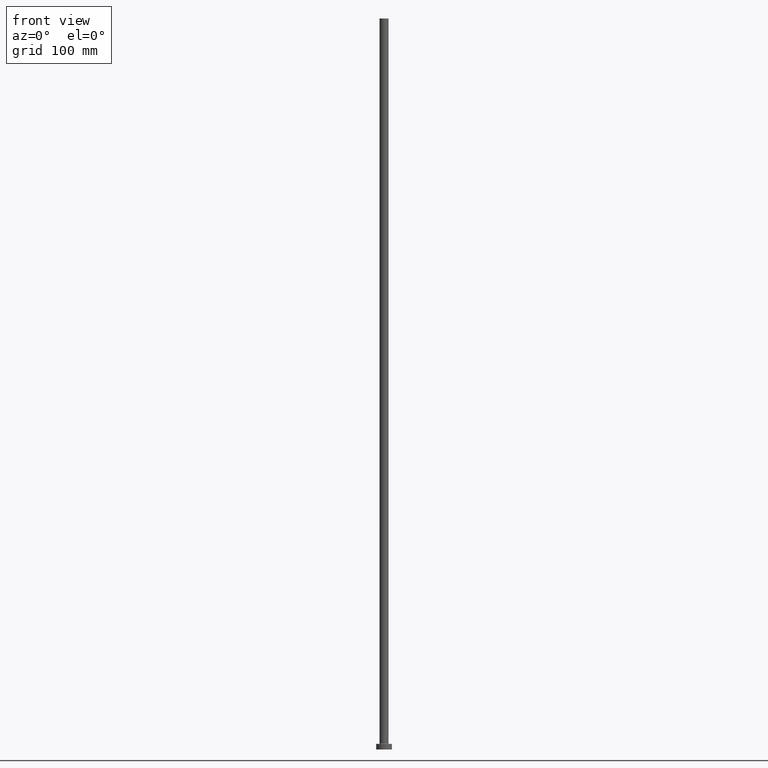
[diagram: clean part render]
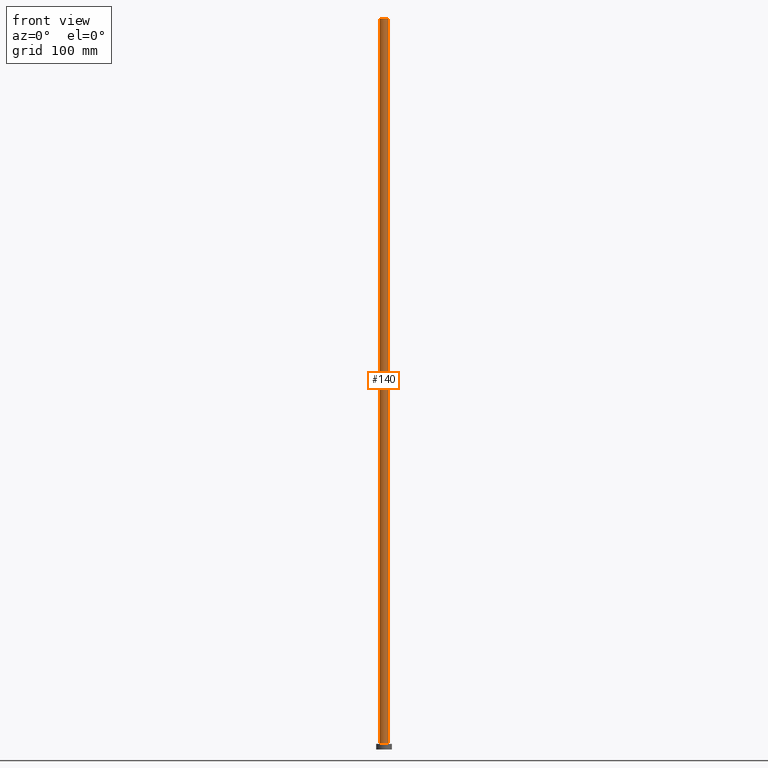
[diagram: same view with one face highlighted and labeled with its STEP entity id]
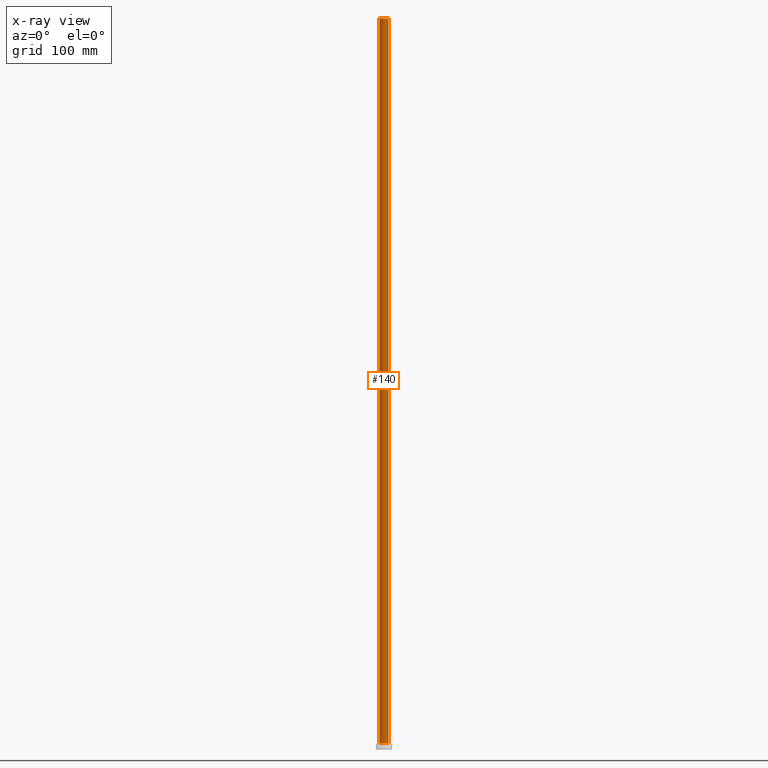
[diagram: x-ray of the same camera — body ghosted, the highlighted face saturated]
A machine part, front view. The second image highlights one B-rep face of the part: STEP entity #140.
The next image is the same camera in x-ray: the body ghosted, the highlighted face saturated — about 0% of this face is hidden behind the body in this view.
In plain terms, the highlighted cylindrical surface (edge-blend (fillet) strip) has radius 4 mm, axis along (-0, -0, -1).
Its self-contained STEP definition (entity closure, byte-faithful):
#5 = DIRECTION ( 'NONE',  ( -1.000000000000000000, 0.000000000000000000, 0.000000000000000000 ) ) ;
#16 = ORIENTED_EDGE ( 'NONE', *, *, #75, .F. ) ;
#31 = DIRECTION ( 'NONE',  ( 1.000000000000000000, 0.000000000000000000, 0.000000000000000000 ) ) ;
#36 = AXIS2_PLACEMENT_3D ( 'NONE', #431, #361, #383 ) ;
#56 = VERTEX_POINT ( 'NONE', #213 ) ;
#64 = CARTESIAN_POINT ( 'NONE',  ( -4.000000000000000000, 0.000000000000000000, 650.0000000000000000 ) ) ;
#72 = ORIENTED_EDGE ( 'NONE', *, *, #97, .T. ) ;
#75 = EDGE_CURVE ( 'NONE', #318, #56, #234, .T. ) ;
#82 = CARTESIAN_POINT ( 'NONE',  ( 4.000000000000000000, 4.898587196589411843E-16, 650.0000000000000000 ) ) ;
#84 = CARTESIAN_POINT ( 'NONE',  ( 4.000000000000000000, 4.898587196589411843E-16, 5.499999999999949374 ) ) ;
#96 = FACE_OUTER_BOUND ( 'NONE', #209, .T. ) ;
#97 = EDGE_CURVE ( 'NONE', #455, #458, #290, .T. ) ;
#106 = CARTESIAN_POINT ( 'NONE',  ( 0.000000000000000000, 0.000000000000000000, 650.0000000000000000 ) ) ;
#127 = CARTESIAN_POINT ( 'NONE',  ( -4.000000000000000000, 0.000000000000000000, 5.499999999999949374 ) ) ;
#140 = ADVANCED_FACE ( 'NONE', ( #96 ), #314, .T. ) ;
#202 = EDGE_CURVE ( 'NONE', #56, #458, #256, .T. ) ;
#209 = EDGE_LOOP ( 'NONE', ( #233, #16, #257, #72 ) ) ;
#213 = CARTESIAN_POINT ( 'NONE',  ( 4.000000000000000000, 4.898587196589411843E-16, 650.0000000000000000 ) ) ;
#233 = ORIENTED_EDGE ( 'NONE', *, *, #202, .F. ) ;
#234 = CIRCLE ( 'NONE', #36, 4.000000000000000000 ) ;
#256 = LINE ( 'NONE', #82, #268 ) ;
#257 = ORIENTED_EDGE ( 'NONE', *, *, #324, .T. ) ;
#268 = VECTOR ( 'NONE', #395, 1000.000000000000000 ) ;
#276 = LINE ( 'NONE', #64, #359 ) ;
#290 = CIRCLE ( 'NONE', #358, 4.000000000000000000 ) ;
#314 = CYLINDRICAL_SURFACE ( 'NONE', #347, 4.000000000000000000 ) ;
#316 = DIRECTION ( 'NONE',  ( 0.000000000000000000, 0.000000000000000000, 1.000000000000000000 ) ) ;
#318 = VERTEX_POINT ( 'NONE', #461 ) ;
#324 = EDGE_CURVE ( 'NONE', #318, #455, #276, .T. ) ;
#347 = AXIS2_PLACEMENT_3D ( 'NONE', #106, #457, #5 ) ;
#350 = DIRECTION ( 'NONE',  ( -0.000000000000000000, -0.000000000000000000, -1.000000000000000000 ) ) ;
#358 = AXIS2_PLACEMENT_3D ( 'NONE', #425, #316, #31 ) ;
#359 = VECTOR ( 'NONE', #350, 1000.000000000000000 ) ;
#361 = DIRECTION ( 'NONE',  ( 0.000000000000000000, 0.000000000000000000, 1.000000000000000000 ) ) ;
#383 = DIRECTION ( 'NONE',  ( 1.000000000000000000, 0.000000000000000000, 0.000000000000000000 ) ) ;
#395 = DIRECTION ( 'NONE',  ( -0.000000000000000000, -0.000000000000000000, -1.000000000000000000 ) ) ;
#425 = CARTESIAN_POINT ( 'NONE',  ( 0.000000000000000000, 0.000000000000000000, 5.499999999999949374 ) ) ;
#431 = CARTESIAN_POINT ( 'NONE',  ( 0.000000000000000000, 0.000000000000000000, 650.0000000000000000 ) ) ;
#455 = VERTEX_POINT ( 'NONE', #127 ) ;
#457 = DIRECTION ( 'NONE',  ( -0.000000000000000000, -0.000000000000000000, -1.000000000000000000 ) ) ;
#458 = VERTEX_POINT ( 'NONE', #84 ) ;
#461 = CARTESIAN_POINT ( 'NONE',  ( -4.000000000000000000, 0.000000000000000000, 650.0000000000000000 ) ) ;